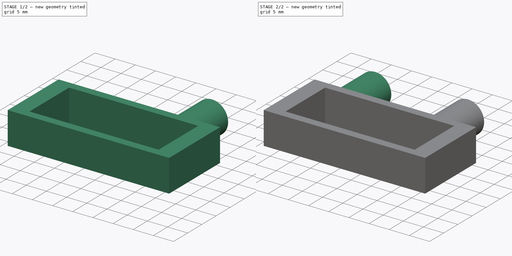
[diagram: build sequence overview — one tinted view per stage of 2, left to right]
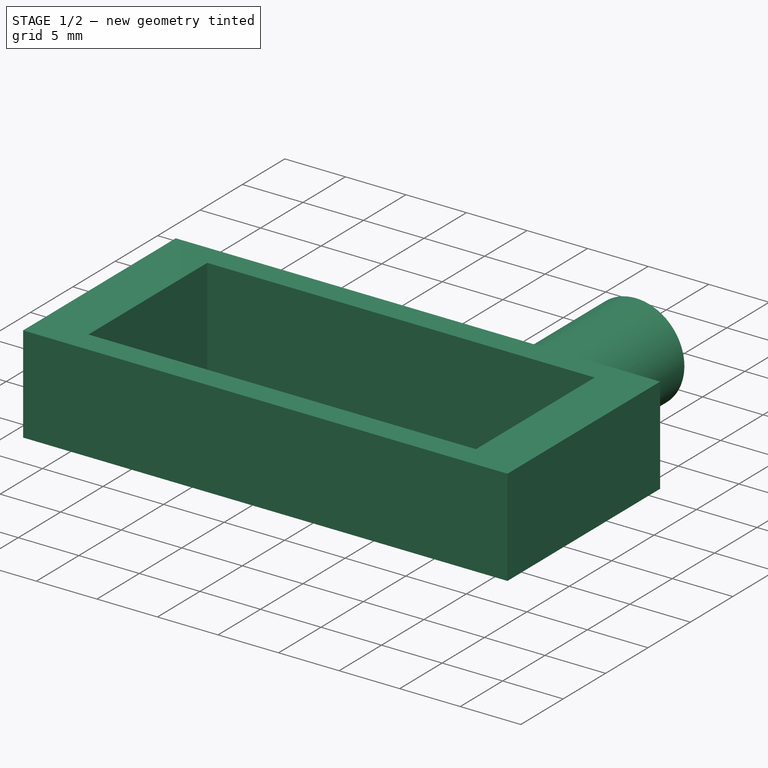
[diagram: stage 1 of 2 — iso view after this stage's code; geometry added in this stage tinted green]
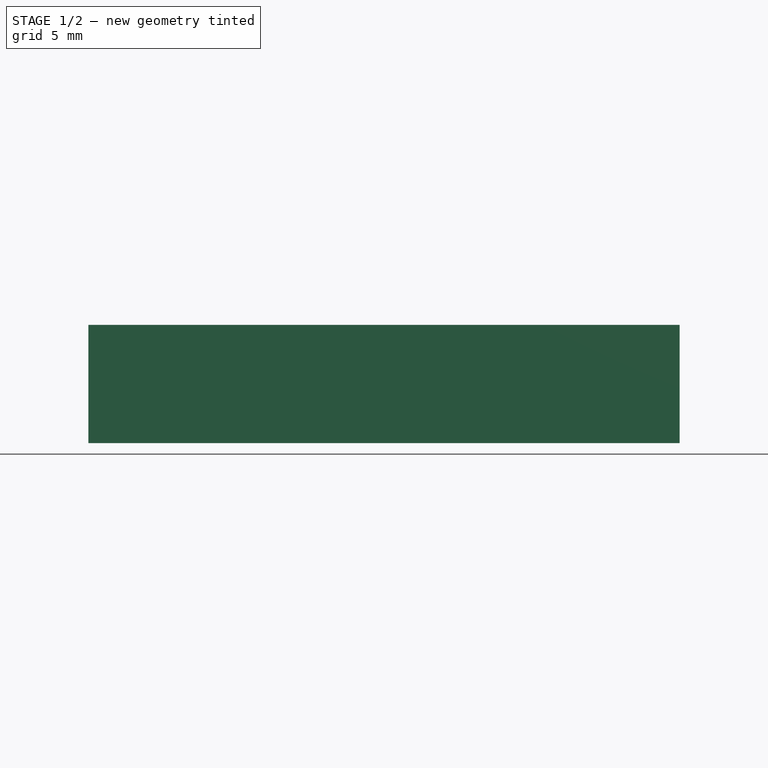
[diagram: stage 1 of 2 — front view after this stage's code; geometry added in this stage tinted green]
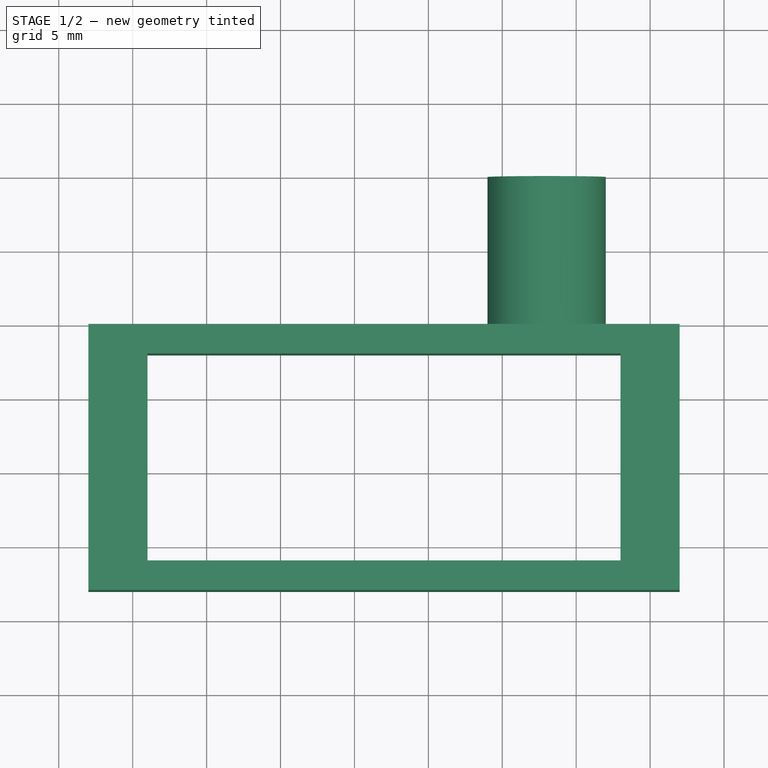
[diagram: stage 1 of 2 — top view after this stage's code; geometry added in this stage tinted green]
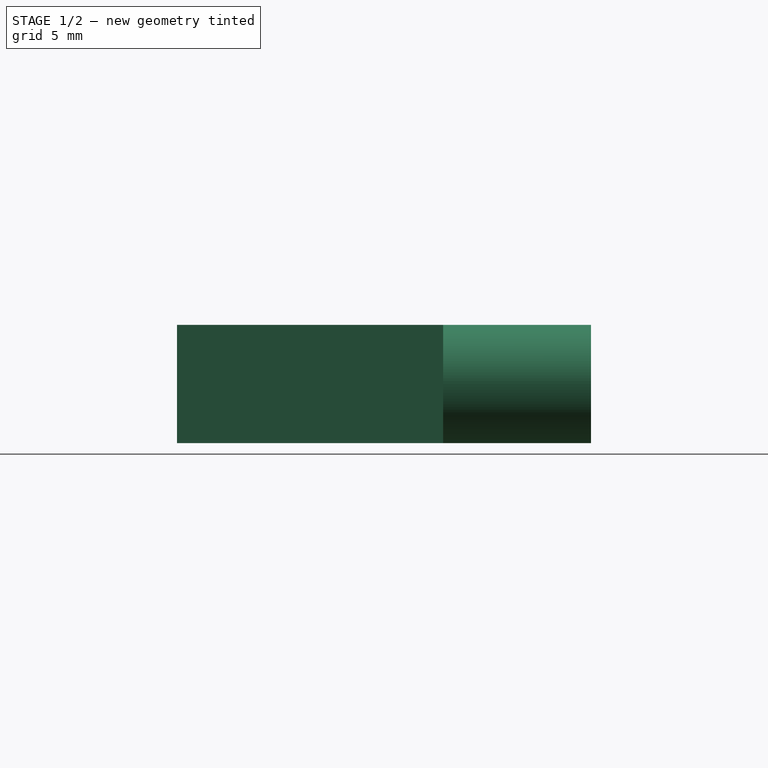
[diagram: stage 1 of 2 — right view after this stage's code; geometry added in this stage tinted green]
FCSTD DOCUMENT  (FreeCAD 0.15R4671 (Git))
Label: Holder_V3
License: All rights reserved
LicenseURL: http://en.wikipedia.org/wiki/All_rights_reserved
objects: Part::Cylinder×2, Sketcher::SketchObject×1, PartDesign::Pad×1
note: 5 computed .brp shape members not serialized (recipe doc carries the construction recipe); baked Part::Feature solids carry a one-line shape summary decoded from their .brp

FEATURE [Part::Cylinder] Cylinder001
  Angle = 360
  Height = 10
  Placement = pos=(23,0,0) rot=(1,0,0;1.5708rad)
  Radius = 4
FEATURE [Sketcher::SketchObject] Sketch
  Placement = pos=(12,-10,0) rot=(0,0,1;0rad)
  sketch-geometry (8):
    g0: LineSegment StartX=-20 StartY=0 StartZ=0 EndX=20 EndY=0 EndZ=0
    g1: LineSegment StartX=20 StartY=0 StartZ=0 EndX=20 EndY=-18 EndZ=0
    g2: LineSegment StartX=20 StartY=-18 StartZ=0 EndX=-20 EndY=-18 EndZ=0
    g3: LineSegment StartX=-20 StartY=-18 StartZ=0 EndX=-20 EndY=0 EndZ=0
    g4: LineSegment StartX=-16 StartY=-2 StartZ=0 EndX=16 EndY=-2 EndZ=0
    g5: LineSegment StartX=16 StartY=-2 StartZ=0 EndX=16 EndY=-16 EndZ=0
    g6: LineSegment StartX=16 StartY=-16 StartZ=0 EndX=-16 EndY=-16 EndZ=0
    g7: LineSegment StartX=-16 StartY=-16 StartZ=0 EndX=-16 EndY=-2 EndZ=0
  constraints (24):
    c: Coincident(g0,g1)
    c: Coincident(g1,g2)
    c: Coincident(g2,g3)
    c: Coincident(g3,g0)
    c: Horizontal(g0)
    c: Horizontal(g2)
    c: Vertical(g1)
    c: Vertical(g3)
    c: Distance(g0) = 40
    c: DistanceX(g-1,g0) = -20
    c: Distance(g1) = 18
    c: DistanceY(g-1,g0) = 0
    c: Coincident(g4,g5)
    c: Coincident(g5,g6)
    c: Coincident(g6,g7)
    c: Coincident(g7,g4)
    c: Horizontal(g4)
    c: Horizontal(g6)
    c: Vertical(g5)
    c: Vertical(g7)
    c: Distance(g4) = 32
    c: Distance(g5) = 14
    c: DistanceX(g2,g6) = 4
    c: DistanceY(g2,g6) = 2
FEATURE [PartDesign::Pad] Pad
  Length = 8
  Length2 = 100
  Midplane = true
  Placement = pos=(12,-10,0) rot=(0,0,1;0rad)
  Sketch = -> Sketch
  Type = 0
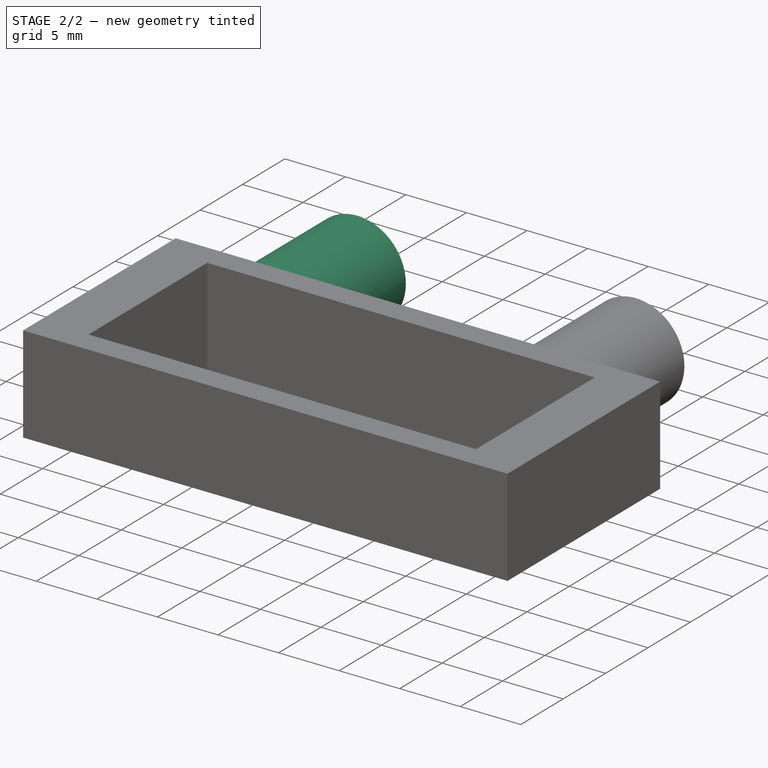
[diagram: stage 2 of 2 — iso view after this stage's code; geometry added in this stage tinted green]
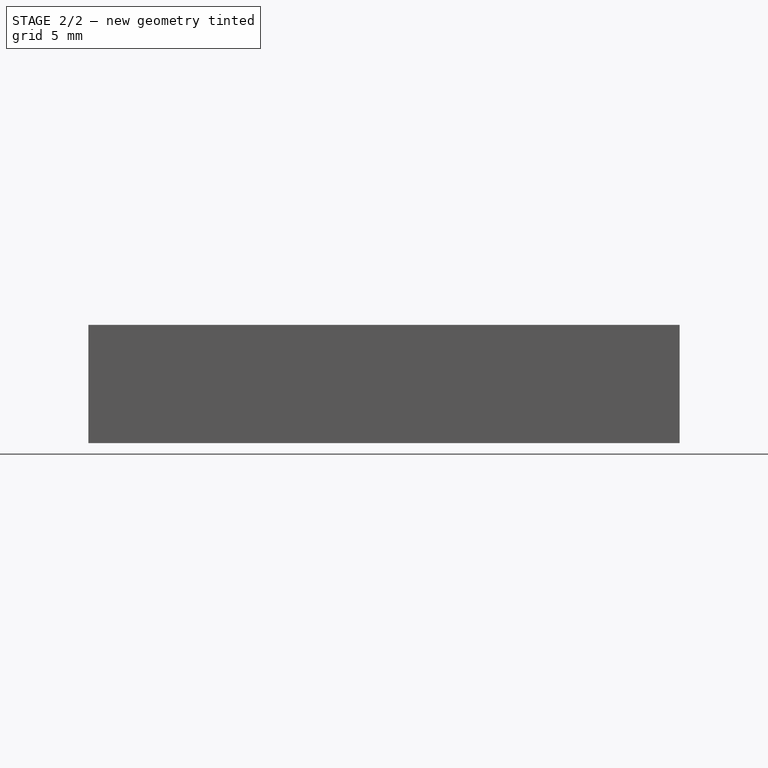
[diagram: stage 2 of 2 — front view after this stage's code; geometry added in this stage tinted green]
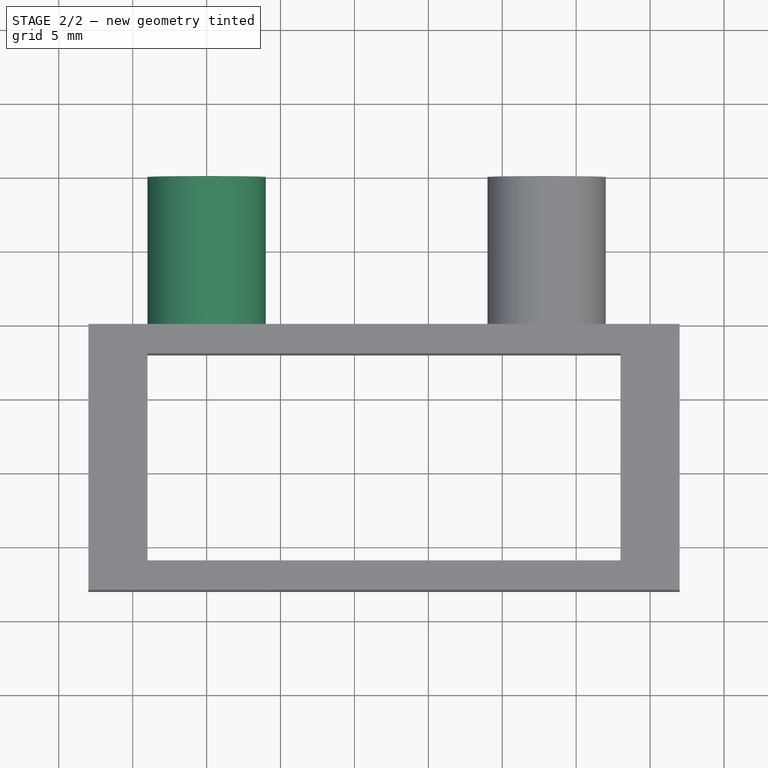
[diagram: stage 2 of 2 — top view after this stage's code; geometry added in this stage tinted green]
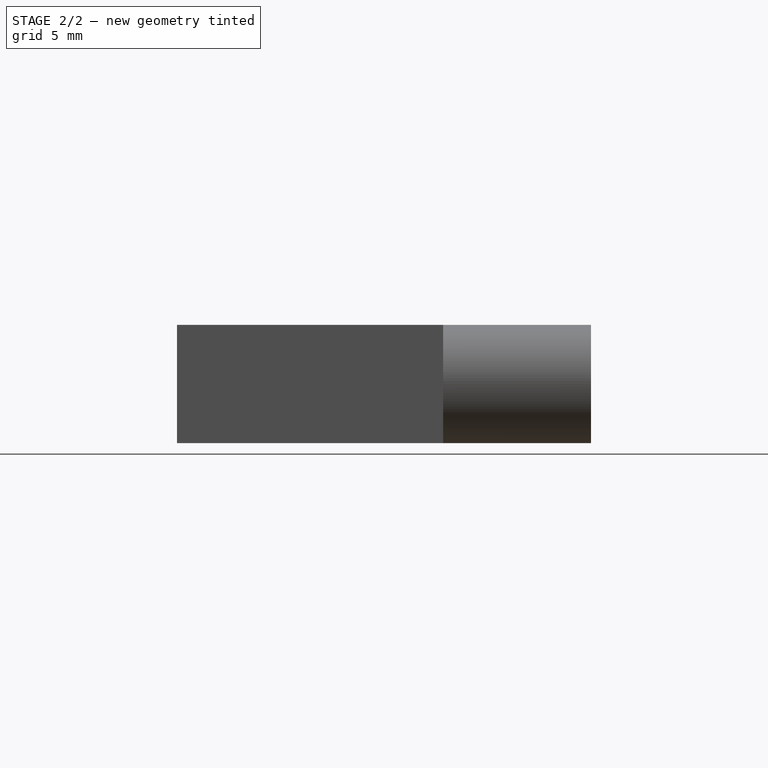
[diagram: stage 2 of 2 — right view after this stage's code; geometry added in this stage tinted green]
FEATURE [Part::Cylinder] Cylinder
  Angle = 360
  Height = 10
  Placement = pos=(0,0,0) rot=(1,0,0;1.5708rad)
  Radius = 4
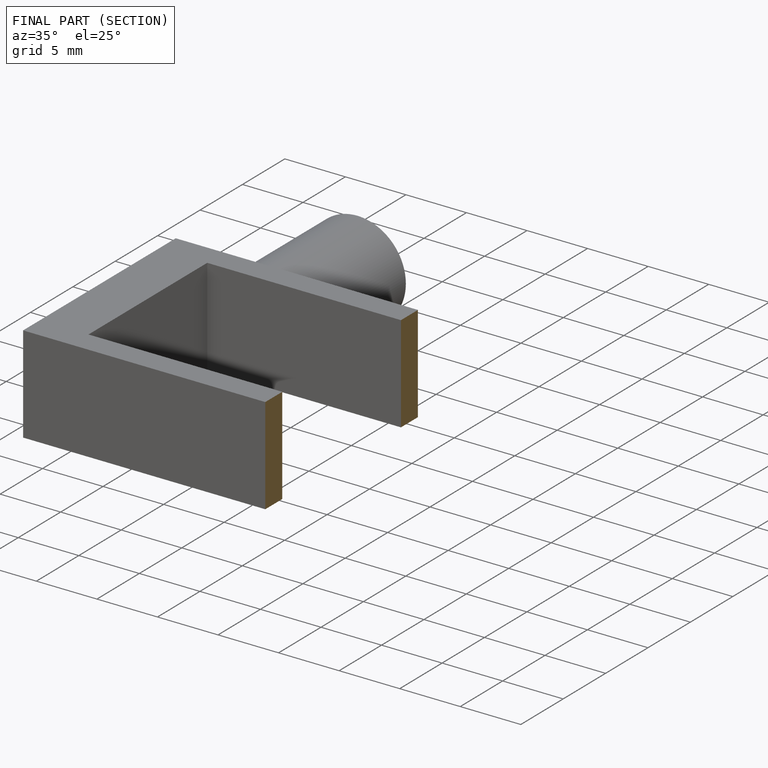
[diagram: finished part — half-section view (interior)]
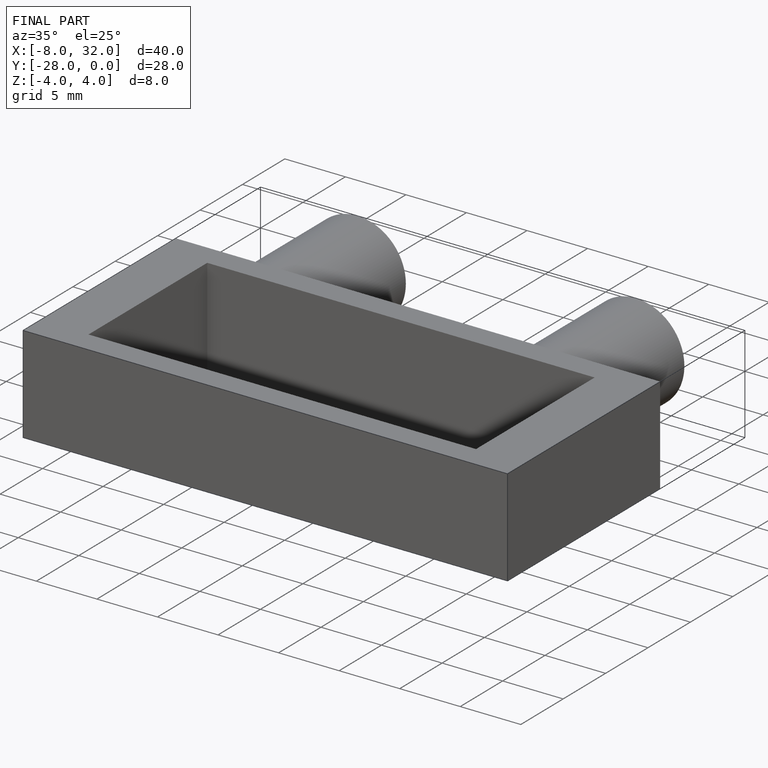
[diagram: finished part — iso view with bounding-box wireframe]
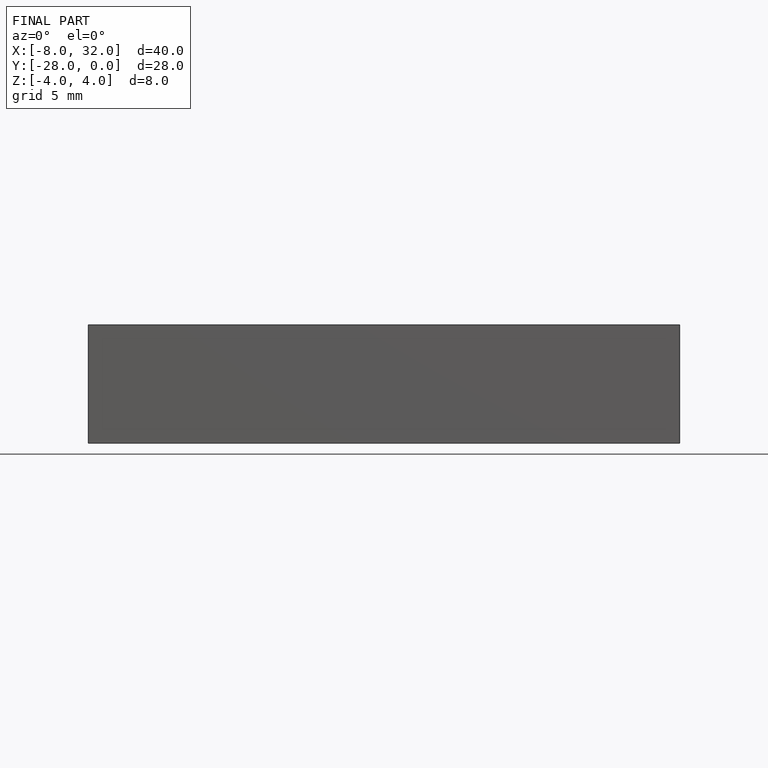
[diagram: finished part — front view with bounding-box wireframe]
